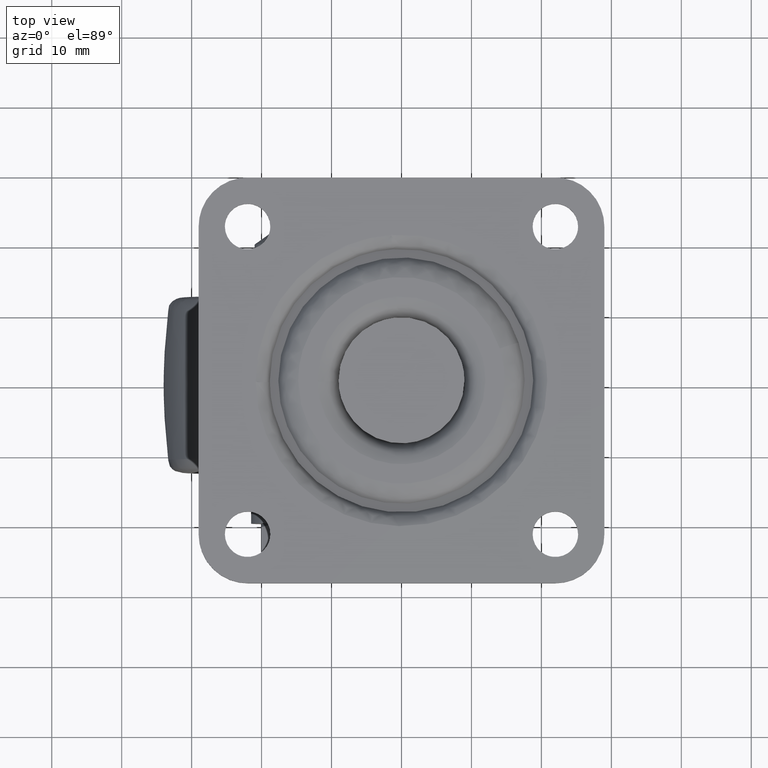
[diagram: clean part render]
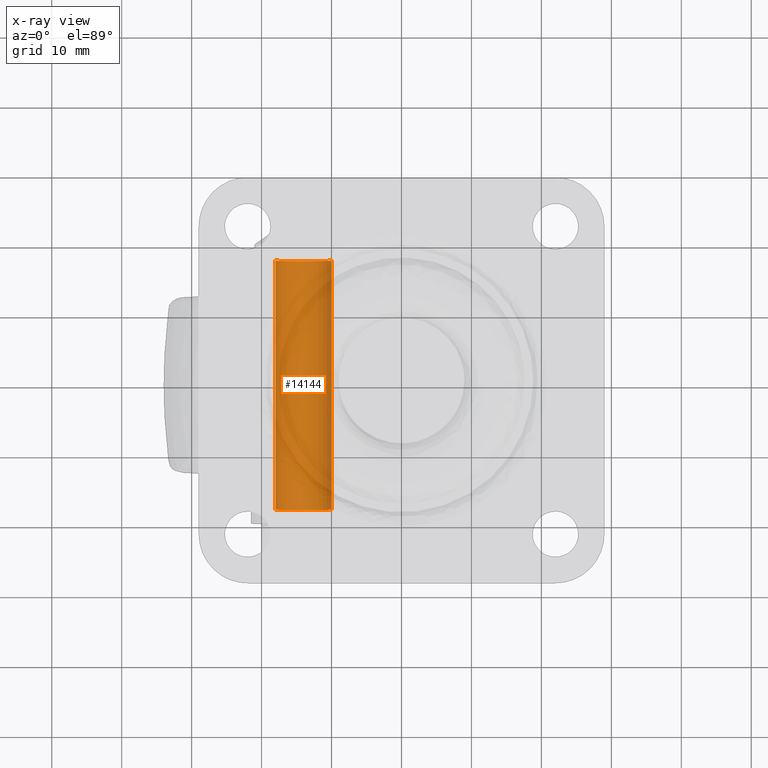
[diagram: x-ray — body ghosted, one internal face saturated and labeled with its STEP entity id]
A machine part, top view, then the same camera in x-ray: the body is ghosted and one INTERNAL B-rep face — a face not visible from any outside direction — is saturated and labeled: STEP entity #14144.
In plain terms, the highlighted face is a freeform B-spline surface patch.
Its self-contained STEP definition (entity closure, byte-faithful):
#14042=CARTESIAN_POINT('',(-10.027961894545337,-18.690000000000012,-39.527832061373068));
#14043=CARTESIAN_POINT('',(-10.014449538205579,-18.690000000000008,-39.641510085448182));
#14044=CARTESIAN_POINT('',(-10.007460806312530,-18.690000000000008,-39.755774841860671));
#14045=CARTESIAN_POINT('',(-9.763266648173106,-18.690000000000008,-43.748314035548127));
#14046=CARTESIAN_POINT('',(-13.755805841860569,-18.690000000000008,-43.992508193687570));
#14047=CARTESIAN_POINT('',(-17.748345035548031,-18.690000000000008,-44.236702351827006));
#14048=CARTESIAN_POINT('',(-17.992539193687470,-18.690000000000008,-40.244163158139528));
#14049=CARTESIAN_POINT('',(-10.027961894545337,18.712250000000012,-39.527832061373068));
#14050=CARTESIAN_POINT('',(-10.014449538205579,18.712250000000012,-39.641510085448182));
#14051=CARTESIAN_POINT('',(-10.007460806312530,18.712250000000012,-39.755774841860671));
#14052=CARTESIAN_POINT('',(-9.763266648173106,18.712250000000008,-43.748314035548127));
#14053=CARTESIAN_POINT('',(-13.755805841860569,18.712250000000012,-43.992508193687570));
#14054=CARTESIAN_POINT('',(-17.748345035548031,18.712250000000008,-44.236702351827006));
#14055=CARTESIAN_POINT('',(-17.992539193687470,18.712250000000012,-40.244163158139528));
#14063=(BOUNDED_SURFACE()B_SPLINE_SURFACE(2,1,((#14042,#14049),(#14043,#14050),(#14044,#14051),(#14045,#14052),(#14046,#14053),(#14047,#14054),(#14048,#14055)),.UNSPECIFIED.,.F.,.F.,.U.)B_SPLINE_SURFACE_WITH_KNOTS((3,2,2,3),(2,2),(0.0,0.265096679918781,6.892513677888305,13.519930675857831),(0.0,37.402250000000024),.UNSPECIFIED.)GEOMETRIC_REPRESENTATION_ITEM()RATIONAL_B_SPLINE_SURFACE(((0.977505800795127,0.977505800795127),(0.988284271247462,0.988284271247462),(1.0,1.0),(0.707106781186548,0.707106781186548),(1.0,1.0),(0.707106781186548,0.707106781186548),(1.0,1.0)))REPRESENTATION_ITEM('')SURFACE());
#14064=CARTESIAN_POINT('',(-10.027961522751211,-17.800000000000001,-39.527835189258731));
#14065=VERTEX_POINT('',#14064);
#14066=CARTESIAN_POINT('',(-14.0,-17.800000000000001,-43.999969000000100));
#14067=VERTEX_POINT('',#14066);
#14068=CARTESIAN_POINT('',(-10.027961522751207,-17.799999999999994,-39.527835189258738));
#14069=CARTESIAN_POINT('',(-10.0,-17.799999999999997,-39.763074101868902));
#14070=CARTESIAN_POINT('',(-10.0,-17.800000000000001,-39.999969000000100));
#14071=CARTESIAN_POINT('',(-10.000000000000002,-17.800000000000004,-43.999969000000107));
#14072=CARTESIAN_POINT('',(-14.0,-17.800000000000001,-43.999969000000100));
#14080=(BOUNDED_CURVE()B_SPLINE_CURVE(2,(#14068,#14069,#14070,#14071,#14072),.UNSPECIFIED.,.F.,.U.)B_SPLINE_CURVE_WITH_KNOTS((3,2,3),(0.229562606601695,0.250000000000000,0.500000000000000),.UNSPECIFIED.)CURVE()GEOMETRIC_REPRESENTATION_ITEM()RATIONAL_B_SPLINE_CURVE((0.956027015042158,0.976056104253655,1.0,0.707106781186548,1.0))REPRESENTATION_ITEM(''));
#14081=EDGE_CURVE('',#14065,#14067,#14080,.T.);
#14082=ORIENTED_EDGE('',*,*,#14081,.T.);
#14083=CARTESIAN_POINT('',(-17.992539193684539,-17.800000000000001,-40.244163158187519));
#14084=VERTEX_POINT('',#14083);
#14085=CARTESIAN_POINT('',(-14.0,-17.800000000000001,-43.999969000000100));
#14086=CARTESIAN_POINT('',(-17.762824267532135,-17.799999999999994,-43.999969000000100));
#14087=CARTESIAN_POINT('',(-17.992539193684539,-17.800000000000001,-40.244163158187519));
#14095=(BOUNDED_CURVE()B_SPLINE_CURVE(2,(#14085,#14086,#14087),.UNSPECIFIED.,.F.,.U.)B_SPLINE_CURVE_WITH_KNOTS((3,3),(0.500000000000000,0.739332962237819),.UNSPECIFIED.)CURVE()GEOMETRIC_REPRESENTATION_ITEM()RATIONAL_B_SPLINE_CURVE((1.0,0.719603993288027,0.976072041664310))REPRESENTATION_ITEM(''));
#14096=EDGE_CURVE('',#14067,#14084,#14095,.T.);
#14097=ORIENTED_EDGE('',*,*,#14096,.T.);
#14098=CARTESIAN_POINT('',(-17.992539193684539,17.800000000000001,-40.244163158187519));
#14099=VERTEX_POINT('',#14098);
#14100=CARTESIAN_POINT('',(-17.992539193684539,-17.800000000000001,-40.244163158187519));
#14101=CARTESIAN_POINT('',(-17.992539193684539,17.800000000000001,-40.244163158187519));
#14102=QUASI_UNIFORM_CURVE('',1,(#14100,#14101),.UNSPECIFIED.,.F.,.U.);
#14103=EDGE_CURVE('',#14084,#14099,#14102,.T.);
#14104=ORIENTED_EDGE('',*,*,#14103,.T.);
#14105=CARTESIAN_POINT('',(-14.0,17.800000000000001,-43.999969000000100));
#14106=VERTEX_POINT('',#14105);
#14107=CARTESIAN_POINT('',(-14.0,17.800000000000001,-43.999969000000100));
#14108=CARTESIAN_POINT('',(-17.762824267532135,17.799999999999994,-43.999969000000100));
#14109=CARTESIAN_POINT('',(-17.992539193684539,17.800000000000001,-40.244163158187519));
#14117=(BOUNDED_CURVE()B_SPLINE_CURVE(2,(#14107,#14108,#14109),.UNSPECIFIED.,.F.,.U.)B_SPLINE_CURVE_WITH_KNOTS((3,3),(0.500000000000000,0.739332962237819),.UNSPECIFIED.)CURVE()GEOMETRIC_REPRESENTATION_ITEM()RATIONAL_B_SPLINE_CURVE((1.0,0.719603993288027,0.976072041664310))REPRESENTATION_ITEM(''));
#14118=EDGE_CURVE('',#14106,#14099,#14117,.T.);
#14119=ORIENTED_EDGE('',*,*,#14118,.F.);
#14120=CARTESIAN_POINT('',(-10.027961527220061,17.800000000000001,-39.527835151662273));
#14121=VERTEX_POINT('',#14120);
#14122=CARTESIAN_POINT('',(-10.027961527220057,17.800000000000004,-39.527835151662266));
#14123=CARTESIAN_POINT('',(-10.0,17.800000000000001,-39.763074082871945));
#14124=CARTESIAN_POINT('',(-10.0,17.800000000000001,-39.999969000000100));
#14125=CARTESIAN_POINT('',(-10.000000000000002,17.800000000000004,-43.999969000000107));
#14126=CARTESIAN_POINT('',(-14.0,17.800000000000001,-43.999969000000100));
#14134=(BOUNDED_CURVE()B_SPLINE_CURVE(2,(#14122,#14123,#14124,#14125,#14126),.UNSPECIFIED.,.F.,.U.)B_SPLINE_CURVE_WITH_KNOTS((3,2,3),(0.229562605002031,0.250000000000000,0.500000000000000),.UNSPECIFIED.)CURVE()GEOMETRIC_REPRESENTATION_ITEM()RATIONAL_B_SPLINE_CURVE((0.956027011906748,0.976056102379532,1.0,0.707106781186548,1.0))REPRESENTATION_ITEM(''));
#14135=EDGE_CURVE('',#14121,#14106,#14134,.T.);
#14136=ORIENTED_EDGE('',*,*,#14135,.F.);
#14137=CARTESIAN_POINT('',(-10.027961522751211,-17.800000000000001,-39.527835189258731));
#14138=CARTESIAN_POINT('',(-10.027961527220061,17.800000000000001,-39.527835151662273));
#14139=QUASI_UNIFORM_CURVE('',1,(#14137,#14138),.UNSPECIFIED.,.F.,.U.);
#14140=EDGE_CURVE('',#14065,#14121,#14139,.T.);
#14141=ORIENTED_EDGE('',*,*,#14140,.F.);
#14142=EDGE_LOOP('',(#14082,#14097,#14104,#14119,#14136,#14141));
#14143=FACE_OUTER_BOUND('',#14142,.T.);
#14144=ADVANCED_FACE('',(#14143),#14063,.T.);